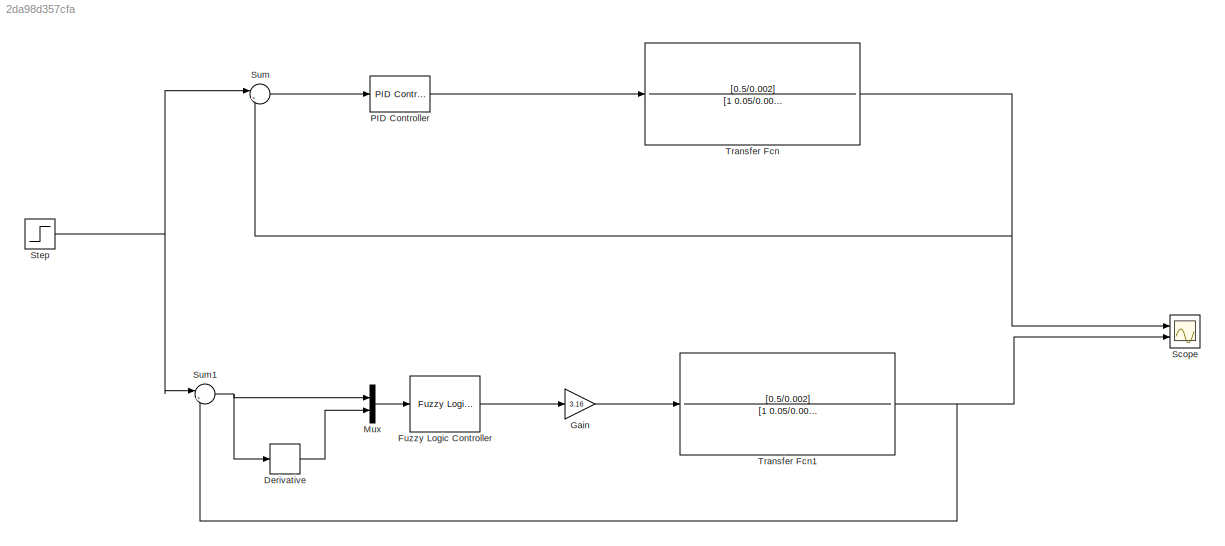
MODEL slx_2da98d357cfa
KIND model
CONFIG AbsTol = auto
CONFIG EnableMultiTasking = off
CONFIG FixedStep = auto
CONFIG MaxStep = auto
CONFIG MinStep = auto
CONFIG RelTol = 1e-3
CONFIG SampleTimeConstraint = Unconstrained
CONFIG SolverName = VariableStepAuto
CONFIG StartTime = 0.0
CONFIG StopTime = 10
BLOCK [Derivative] Derivative
BLOCK [Reference] Fuzzy Logic Controller  REF=fuzblock/Fuzzy Logic   (lib defined in mdl_858b3b3e7478)
Controller
  Ports = [1, 1]
  SourceBlock = fuzblock/Fuzzy Logic \nController
  SourceProductBaseCode = FL
  SourceType = Fuzzy Inference System
BLOCK [Gain] Gain
  Gain = 3.16
BLOCK [Mux] Mux
  DisplayOption = bar
  Inputs = 2
  Ports = [2, 1]
BLOCK [Reference] PID Controller  REF=pid_lib/PID Controller
  Ports = [1, 1]
  SourceBlock = pid_lib/PID Controller
  SourceProductBaseCode = SL
  SourceType = PID 1dof
BLOCK [Scope] Scope
  Floating = off
  NumInputPorts = 2
  Ports = [2]
  ScopeSpecificationString = Simulink.scopes.TimeScopeBlockCfg('CurrentConfiguration', extmgr.ConfigurationSet(extmgr.Configuration('Core','General UI',true),extmgr.Configuration('Core','Source UI',true),extmgr.Configuration('Sources','WiredSimulink',true),extmgr.Configuration('Visuals','Time Domain',true,'SerializedDisplays',{struct('MinYLimReal','-0.13679','MaxYLimReal','1.23111','YLabelReal','','MinYLimMag','0.00000','MaxY...<+1423ch>
BLOCK [Step] Step
  Before = 1
  SampleTime = 0
BLOCK [Sum] Sum
  Inputs = |+-
  Ports = [2, 1]
BLOCK [Sum] Sum1
  Inputs = |+-
  Ports = [2, 1]
BLOCK [TransferFcn] Transfer Fcn
  Denominator = [1  0.05/0.002 0.629/0.002]
  Numerator = [0.5/0.002]
BLOCK [TransferFcn] Transfer Fcn1
  Denominator = [1  0.05/0.002 0.629/0.002]
  Numerator = [0.5/0.002]
LINE Derivative:1 -> Mux:2
LINE Fuzzy Logic Controller:1 -> Gain:1
LINE Gain:1 -> Transfer Fcn1:1
LINE Mux:1 -> Fuzzy Logic Controller:1
LINE PID Controller:1 -> Transfer Fcn:1
NET Step:1 -> Sum1:1, Sum:1
NET Sum1:1 -> Derivative:1, Mux:1
LINE Sum:1 -> PID Controller:1
NET Transfer Fcn1:1 -> Scope:2, Sum1:2
NET Transfer Fcn:1 -> Scope:1, Sum:2
note: NET lines group one-source signal fan-out (src -> all destinations, sorted); 1:1 wires keep LINE
